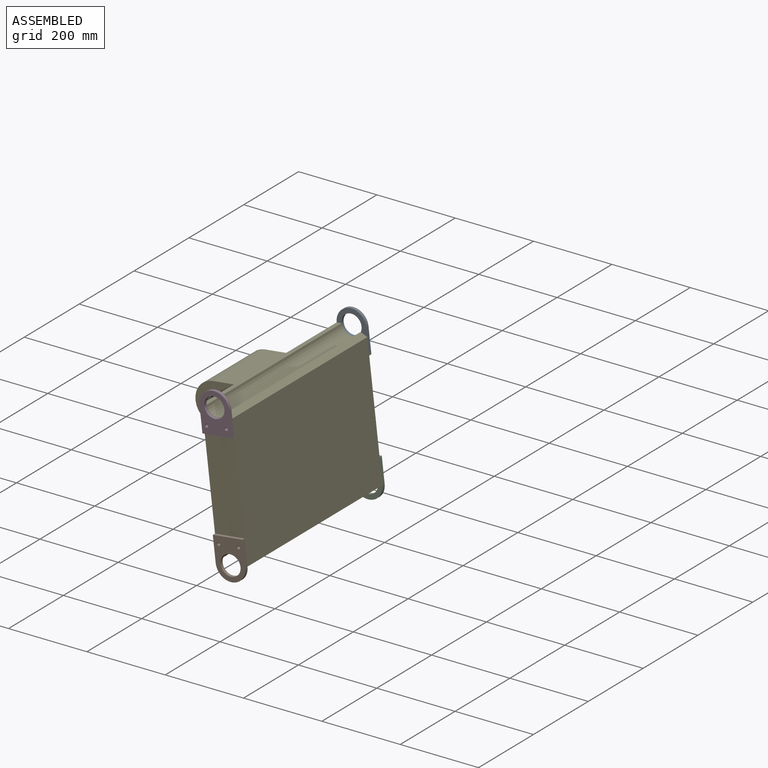
[diagram: assembled view]
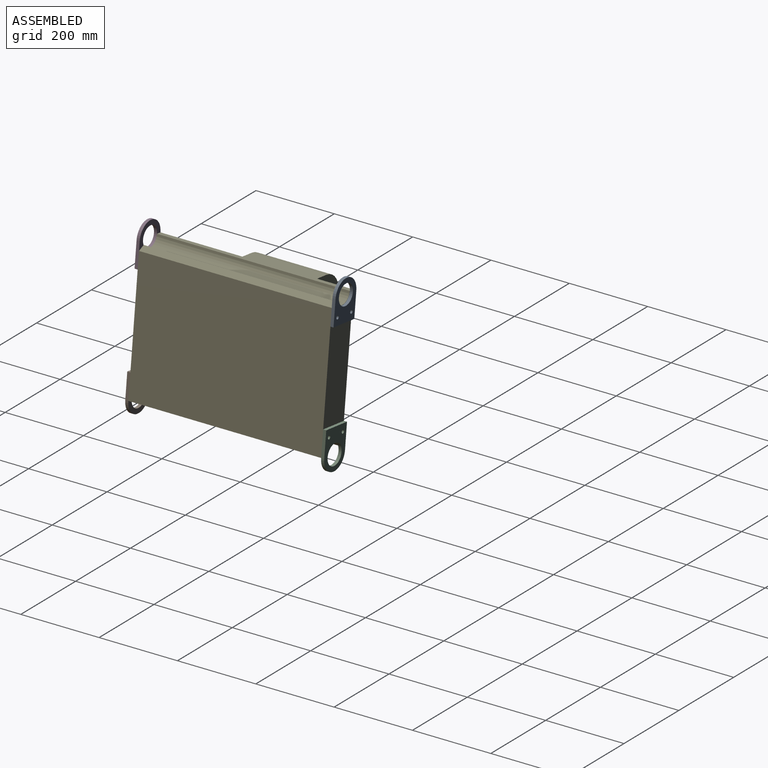
[diagram: assembled view, second angle]
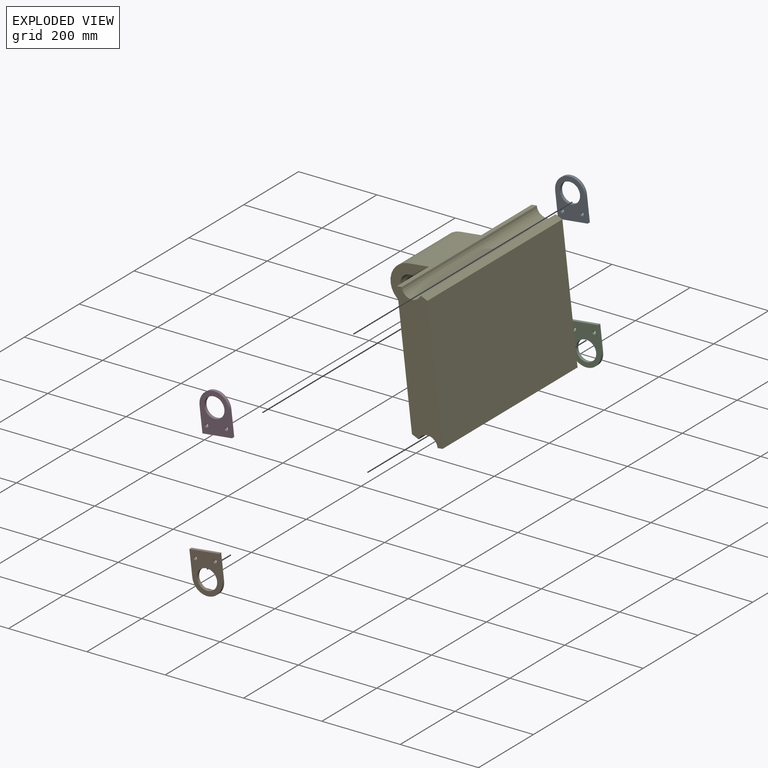
[diagram: exploded view]
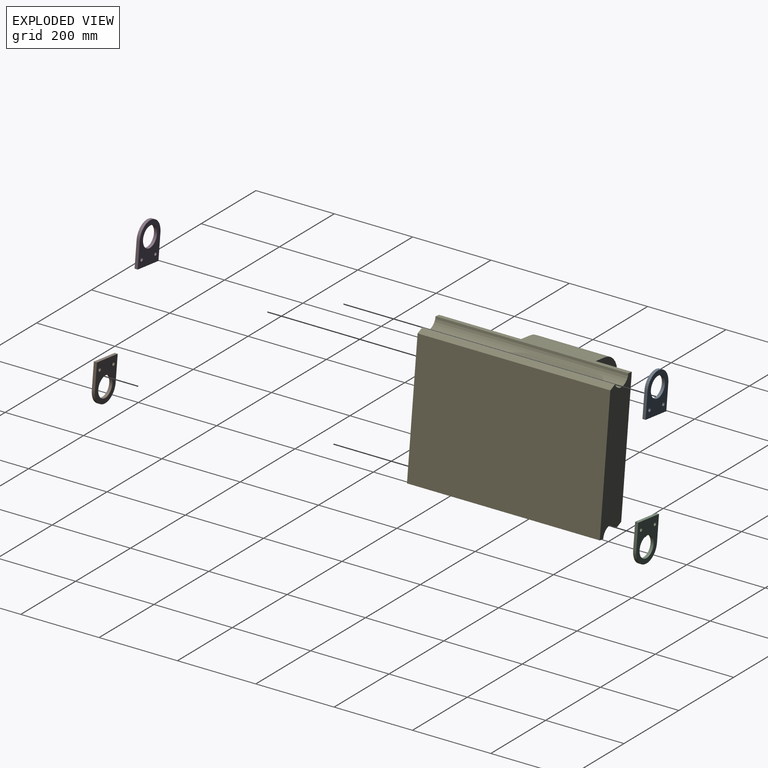
[diagram: exploded view, second angle]
ASSEMBLY  parts=5 mates=5
PART A: 9 faces, bbox 76.2x7.9x101.6 mm
  f0: cylinder r=38.1mm len=76.2mm, axis (0,1,0), area 950.1mm2, adj f1,f6,f7,f8
  f1: plane 63.5x7.94mm, normal (-1,0,0), area 504mm2, adj f0,f2,f7,f8
  f2: plane 76.2x7.94mm, normal (0,0,-1), area 604.8mm2, adj f1,f6,f7,f8
  f3: cylinder r=25.78mm len=51.56mm, axis (0,1,0), area 1285.8mm2, adj f7,f8
  f4: cylinder r=4.32mm len=8.64mm, axis (0,1,0), area 215.4mm2, adj f7,f8
  f5: cylinder r=4.32mm len=8.64mm, axis (0,1,0), area 215.4mm2, adj f7,f8
  f6: plane 63.5x7.94mm, normal (1,0,0), area 504mm2, adj f0,f2,f7,f8
  f7: plane 101.6x76.2mm, normal (0,-1,0), area 4913.6mm2, adj f0,f1,f2,f3,f4,f5,f6
  f8: plane 101.6x76.2mm, normal (0,1,0), area 4913.6mm2, adj f0,f1,f2,f3,f4,f5,f6
PART B: same geometry as A
PART C: same geometry as A
PART D: same geometry as A
PART E: 16 faces, bbox 220.8x492.1x355.6 mm
  f0: plane 492.13x333.6mm, normal (1,0,0), area 118145.7mm2, adj f1,f7,f8,f9,f10,f11,f14,f15
  f1: plane 492.13x12.7mm, normal (0,0,1), area 6250mm2, adj f0,f2,f8,f9
  f2: cylinder r=25.4mm len=492.13mm, axis (0,1,0), area 32724.9mm2, adj f1,f3,f8,f9
  f3: plane 492.13x16.1mm, normal (-0.5,0,0.87), area 9150.6mm2, adj f2,f4,f8,f9
  f4: plane 492.13x333.6mm, normal (-1,0,0), area 164174.4mm2, adj f3,f5,f8,f9
  f5: plane 492.13x12.7mm, normal (0,0,-1), area 6250mm2, adj f4,f6,f8,f9
  f6: cylinder r=25.4mm len=492.13mm, axis (0,1,0), area 32724.9mm2, adj f5,f7,f8,f9
  f7: plane 492.13x16.1mm, normal (0.5,0,-0.87), area 9150.6mm2, adj f0,f6,f8,f9
  f8: plane 355.6x76.2mm, normal (0,-1,0), area 24569.6mm2, adj f0,f1,f2,f3,f4,f5,f6,f7
  f9: plane 355.6x76.2mm, normal (0,1,0), area 24569.6mm2, adj f0,f1,f2,f3,f4,f5,f6,f7
  f10: plane 190.5x93.8mm, normal (0,0,1), area 17869.4mm2, adj f0,f13,f14,f15
  f11: plane 190.5x158.17mm, normal (0.77,0,-0.64), area 39332.9mm2, adj f0,f13,f14,f15
  f12: cylinder r=25.4mm len=190.5mm, axis (0,1,0), area 30402.4mm2, adj f14,f15
  f13: cylinder r=50.8mm len=190.5mm, axis (0,1,0), area 21957.3mm2, adj f10,f11,f14,f15
  f14: plane 241.62x144.6mm, normal (0,-1,0), area 19860.1mm2, adj f0,f10,f11,f12,f13
  f15: plane 241.62x144.6mm, normal (0,1,0), area 19860.1mm2, adj f0,f10,f11,f12,f13
PLACE A rot(axis=(0.06,0,-1),180deg) t=(220.15,336.18,761.81)mm
PLACE B rot(axis=(0,1,0),173.3deg) t=(261.38,-155.94,408.61)mm
PLACE C rot(axis=(-1,0,-0.06),180deg) t=(261.38,336.18,408.61)mm
PLACE D rot(axis=(0,-1,0),6.7deg) t=(220.15,-155.94,761.81)mm
PLACE E rot(axis=(0.06,0,-1),180deg) t=(240.76,90.12,585.21)mm
MATE fastened D.f3 <-> E.f2  axis (0,1,0) through (220.15,-155.94,761.81)mm
MATE parallel B.f1 <-> E.f4  axis (0.99,0,0.12) through (295.54,-159.91,444.56)mm
MATE fastened A.f3 <-> E.f2  axis (0,-1,0) through (220.15,336.18,761.81)mm
MATE fastened C.f3 <-> E.f6  axis (0,-1,0) through (261.38,336.18,408.61)mm
MATE fastened B.f3 <-> E.f6  axis (0,1,0) through (261.38,-155.94,408.61)mm
